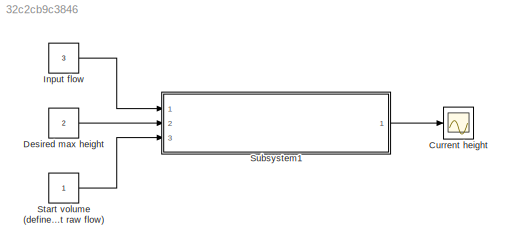
MODEL slx_32c2cb9c3846
KIND model
CONFIG AbsTol = auto
CONFIG EnableMultiTasking = off
CONFIG FixedStep = 0.1
CONFIG MaxStep = auto
CONFIG MinStep = auto
CONFIG RelTol = 1e-3
CONFIG SampleTimeConstraint = Unconstrained
CONFIG SolverName = VariableStepAuto
CONFIG StartTime = 0.0
CONFIG StopTime = 5000
BLOCK [Scope] Current height
  Floating = off
  NumInputPorts = 1
  Ports = [1]
  ScopeSpecificationString = Simulink.scopes.TimeScopeBlockCfg('CurrentConfiguration', extmgr.ConfigurationSet(extmgr.Configuration('Core','General UI',true),extmgr.Configuration('Core','Source UI',true),extmgr.Configuration('Sources','WiredSimulink',true),extmgr.Configuration('Visuals','Time Domain',true,'SerializedDisplays',{struct('MinYLimReal','-0.05591','MaxYLimReal','0.5159','YLabelReal','','MinYLimMag','0.00000','MaxYL...<+1355ch>
BLOCK [Constant] Desired max height
  Value = 2
BLOCK [Constant] Input flow
  Value = 3
BLOCK [Constant] Start volume (defined by initial inlet raw flow)
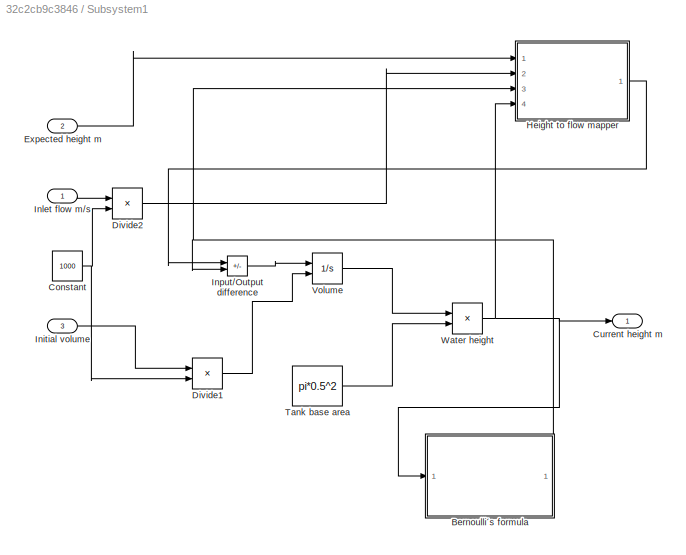
BLOCK [SubSystem] Subsystem1
  Ports = [3, 1]
  RequestExecContextInheritance = off
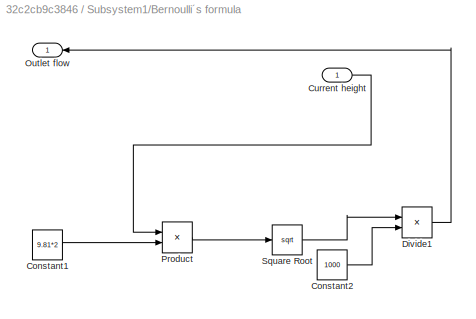
BLOCK [SubSystem] Subsystem1/Bernoulli´s formula
  Ports = [1, 1]
  RequestExecContextInheritance = off
BLOCK [Constant] Subsystem1/Bernoulli´s formula/Constant1
  Value = 9.81*2
BLOCK [Constant] Subsystem1/Bernoulli´s formula/Constant2
  Value = 1000
BLOCK [Inport] Subsystem1/Bernoulli´s formula/Current height
BLOCK [Product] Subsystem1/Bernoulli´s formula/Divide1
  Inputs = */
  Ports = [2, 1]
BLOCK [Outport] Subsystem1/Bernoulli´s formula/Outlet flow 
BLOCK [Product] Subsystem1/Bernoulli´s formula/Product
  Ports = [2, 1]
BLOCK [Sqrt] Subsystem1/Bernoulli´s formula/Square Root
BLOCK [Constant] Subsystem1/Constant
  Value = 1000
BLOCK [Outport] Subsystem1/Current height m
BLOCK [Product] Subsystem1/Divide1
  Inputs = */
  Ports = [2, 1]
BLOCK [Product] Subsystem1/Divide2
  Inputs = */
  Ports = [2, 1]
BLOCK [Inport] Subsystem1/Expected height m
  Port = 2
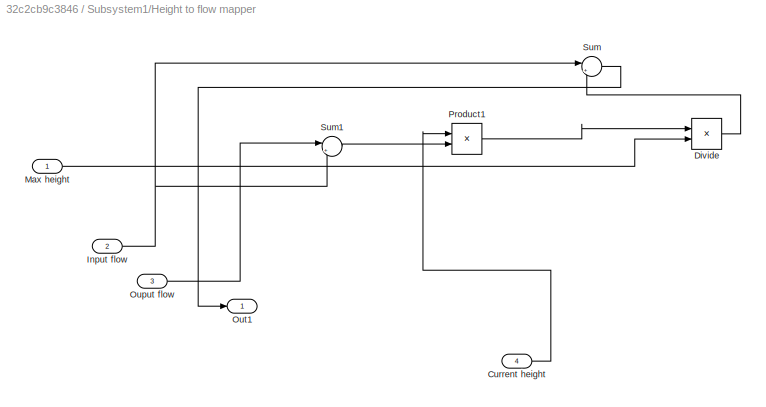
BLOCK [SubSystem] Subsystem1/Height to flow mapper
  Ports = [4, 1]
  RequestExecContextInheritance = off
BLOCK [Inport] Subsystem1/Height to flow mapper/ Ouput flow
  Port = 3
BLOCK [Inport] Subsystem1/Height to flow mapper/Current height
  Port = 4
BLOCK [Product] Subsystem1/Height to flow mapper/Divide
  Inputs = */
  Ports = [2, 1]
BLOCK [Inport] Subsystem1/Height to flow mapper/Input flow
  Port = 2
BLOCK [Inport] Subsystem1/Height to flow mapper/Max height
BLOCK [Outport] Subsystem1/Height to flow mapper/Out1
BLOCK [Product] Subsystem1/Height to flow mapper/Product1
  Ports = [2, 1]
BLOCK [Sum] Subsystem1/Height to flow mapper/Sum
  Inputs = |++
  Ports = [2, 1]
BLOCK [Sum] Subsystem1/Height to flow mapper/Sum1
  Inputs = |+-
  Ports = [2, 1]
BLOCK [Inport] Subsystem1/Initial volume
  Port = 3
BLOCK [Inport] Subsystem1/Inlet flow m//s
BLOCK [Sum] Subsystem1/Input//Output difference
  IconShape = rectangular
  Inputs = |+-
  Ports = [2, 1]
BLOCK [Constant] Subsystem1/Tank base area
  Value = pi*0.5^2
BLOCK [Integrator] Subsystem1/Volume
  InitialConditionSource = external
  Ports = [2, 1]
BLOCK [Product] Subsystem1/Water height
  Inputs = */
  Ports = [2, 1]
LINE Desired max height:1 -> Subsystem1:2
LINE Input flow:1 -> Subsystem1:1
LINE Start volume (defined by initial inlet raw flow):1 -> Subsystem1:3
LINE Subsystem1/Bernoulli´s formula/Constant1:1 -> Subsystem1/Bernoulli´s formula/Product:2
LINE Subsystem1/Bernoulli´s formula/Constant2:1 -> Subsystem1/Bernoulli´s formula/Divide1:2
LINE Subsystem1/Bernoulli´s formula/Current height:1 -> Subsystem1/Bernoulli´s formula/Product:1
LINE Subsystem1/Bernoulli´s formula/Divide1:1 -> Subsystem1/Bernoulli´s formula/Outlet flow :1
LINE Subsystem1/Bernoulli´s formula/Product:1 -> Subsystem1/Bernoulli´s formula/Square Root:1
LINE Subsystem1/Bernoulli´s formula/Square Root:1 -> Subsystem1/Bernoulli´s formula/Divide1:1
NET Subsystem1/Bernoulli´s formula:1 -> Subsystem1/Height to flow mapper:3, Subsystem1/Input//Output difference:2
NET Subsystem1/Constant:1 -> Subsystem1/Divide1:2, Subsystem1/Divide2:2
LINE Subsystem1/Divide1:1 -> Subsystem1/Volume:2
LINE Subsystem1/Divide2:1 -> Subsystem1/Height to flow mapper:2
LINE Subsystem1/Expected height m:1 -> Subsystem1/Height to flow mapper:1
LINE Subsystem1/Height to flow mapper/ Ouput flow:1 -> Subsystem1/Height to flow mapper/Sum1:1
LINE Subsystem1/Height to flow mapper/Current height:1 -> Subsystem1/Height to flow mapper/Product1:1
LINE Subsystem1/Height to flow mapper/Divide:1 -> Subsystem1/Height to flow mapper/Sum:2
NET Subsystem1/Height to flow mapper/Input flow:1 -> Subsystem1/Height to flow mapper/Sum1:2, Subsystem1/Height to flow mapper/Sum:1
LINE Subsystem1/Height to flow mapper/Max height:1 -> Subsystem1/Height to flow mapper/Divide:2
LINE Subsystem1/Height to flow mapper/Product1:1 -> Subsystem1/Height to flow mapper/Divide:1
LINE Subsystem1/Height to flow mapper/Sum1:1 -> Subsystem1/Height to flow mapper/Product1:2
LINE Subsystem1/Height to flow mapper/Sum:1 -> Subsystem1/Height to flow mapper/Out1:1
LINE Subsystem1/Height to flow mapper:1 -> Subsystem1/Input//Output difference:1
LINE Subsystem1/Initial volume:1 -> Subsystem1/Divide1:1
LINE Subsystem1/Inlet flow m//s:1 -> Subsystem1/Divide2:1
LINE Subsystem1/Input//Output difference:1 -> Subsystem1/Volume:1
LINE Subsystem1/Tank base area:1 -> Subsystem1/Water height:2
LINE Subsystem1/Volume:1 -> Subsystem1/Water height:1
NET Subsystem1/Water height:1 -> Subsystem1/Bernoulli´s formula:1, Subsystem1/Current height m:1, Subsystem1/Height to flow mapper:4
LINE Subsystem1:1 -> Current height:1
note: NET lines group one-source signal fan-out (src -> all destinations, sorted); 1:1 wires keep LINE
